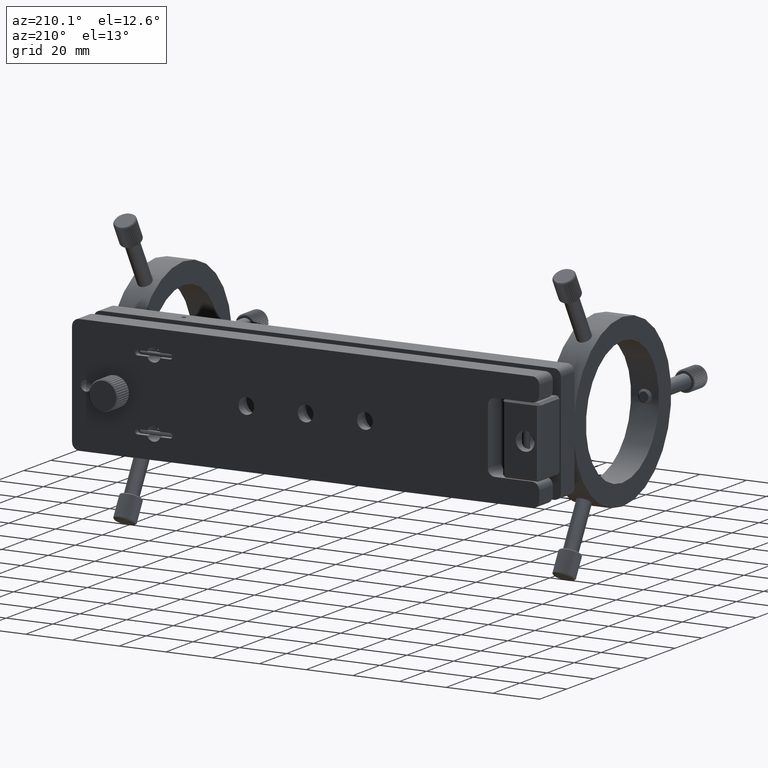
[diagram: clean part render]
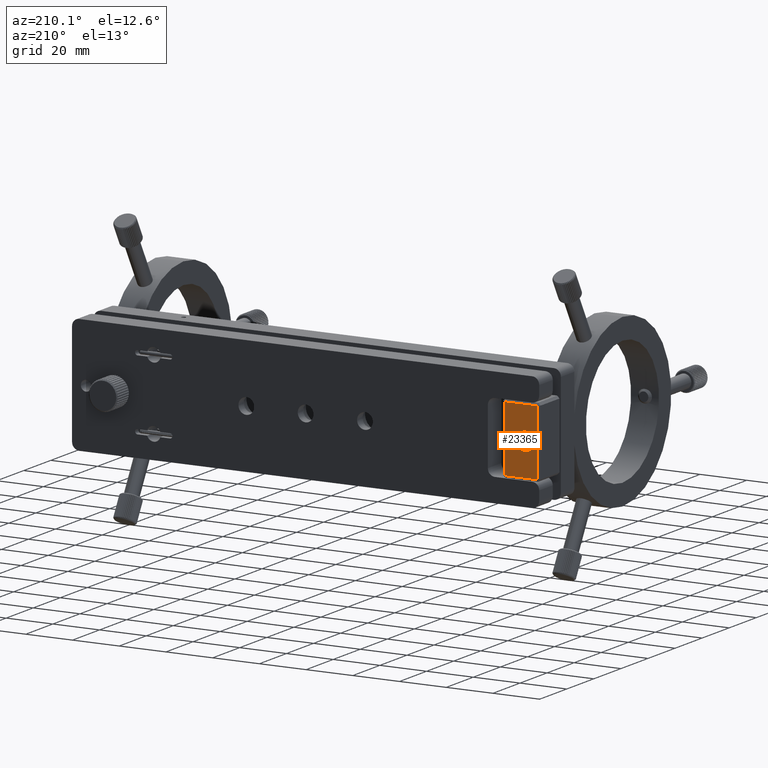
[diagram: same view with one face highlighted and labeled with its STEP entity id]
A machine part, auxiliary view. The second image highlights one B-rep face of the part: STEP entity #23365.
In plain terms, the highlighted planar face has unit normal (0, -1, -0).
Its self-contained STEP definition (entity closure, byte-faithful):
#2011 = FACE_BOUND ( 'NONE', #14839, .T. ) ;
#2026 = VERTEX_POINT ( 'NONE', #28464 ) ;
#4518 = VECTOR ( 'NONE', #39613, 1000.000000000000000 ) ;
#4540 = DIRECTION ( 'NONE',  ( -8.326672684688666700E-017, 1.000000000000000000, -4.000217369937649100E-017 ) ) ;
#8048 = ORIENTED_EDGE ( 'NONE', *, *, #38183, .T. ) ;
#8070 = ORIENTED_EDGE ( 'NONE', *, *, #11624, .F. ) ;
#8191 = CARTESIAN_POINT ( 'NONE',  ( -103.6330608537693100, 8.587042082954921400, -13.99999999999995600 ) ) ;
#9125 = DIRECTION ( 'NONE',  ( 0.0000000000000000000, 0.0000000000000000000, -1.000000000000000000 ) ) ;
#9877 = PLANE ( 'NONE',  #29765 ) ;
#11624 = EDGE_CURVE ( 'NONE', #23239, #17456, #20961, .T. ) ;
#12863 = ORIENTED_EDGE ( 'NONE', *, *, #26146, .T. ) ;
#14839 = EDGE_LOOP ( 'NONE', ( #8070, #29515 ) ) ;
#16044 = DIRECTION ( 'NONE',  ( -3.542776482757819800E-016, 2.030699409015558700E-016, -1.000000000000000000 ) ) ;
#16115 = VERTEX_POINT ( 'NONE', #22328 ) ;
#16118 = ORIENTED_EDGE ( 'NONE', *, *, #21786, .T. ) ;
#17456 = VERTEX_POINT ( 'NONE', #28603 ) ;
#18980 = VECTOR ( 'NONE', #16044, 1000.000000000000000 ) ;
#20787 = LINE ( 'NONE', #45736, #18980 ) ;
#20961 = CIRCLE ( 'NONE', #33718, 3.999999999999999100 ) ;
#21786 = EDGE_CURVE ( 'NONE', #32491, #42781, #33884, .T. ) ;
#22328 = CARTESIAN_POINT ( 'NONE',  ( -88.63306085376930800, 8.587042082954909000, -13.99999999999994100 ) ) ;
#23239 = VERTEX_POINT ( 'NONE', #31575 ) ;
#23326 = DIRECTION ( 'NONE',  ( 0.0000000000000000000, 0.0000000000000000000, -1.000000000000000000 ) ) ;
#23365 = ADVANCED_FACE ( 'NONE', ( #2011, #43244 ), #9877, .F. ) ;
#23656 = DIRECTION ( 'NONE',  ( -8.326672684688666700E-017, 1.000000000000000000, -4.000217369937649100E-017 ) ) ;
#25058 = EDGE_CURVE ( 'NONE', #42781, #16115, #20787, .T. ) ;
#25181 = CARTESIAN_POINT ( 'NONE',  ( -102.6330608537692500, 8.587042082954910800, 14.00000000000003600 ) ) ;
#26146 = EDGE_CURVE ( 'NONE', #16115, #2026, #46641, .T. ) ;
#28464 = CARTESIAN_POINT ( 'NONE',  ( -102.6330608537693100, 8.587042082954921400, -13.99999999999995600 ) ) ;
#28603 = CARTESIAN_POINT ( 'NONE',  ( -97.63306085376928000, 8.587042082954909000, 4.000000000000044400 ) ) ;
#29515 = ORIENTED_EDGE ( 'NONE', *, *, #40785, .F. ) ;
#29765 = AXIS2_PLACEMENT_3D ( 'NONE', #29801, #32658, #44886 ) ;
#29801 = CARTESIAN_POINT ( 'NONE',  ( -87.63306085376930800, 8.587042082954909000, -14.99999999999994000 ) ) ;
#30197 = AXIS2_PLACEMENT_3D ( 'NONE', #46054, #23656, #9125 ) ;
#30577 = CARTESIAN_POINT ( 'NONE',  ( -88.63306085376926500, 8.587042082954898300, 14.00000000000005000 ) ) ;
#31575 = CARTESIAN_POINT ( 'NONE',  ( -97.63306085376928000, 8.587042082954909000, -3.999999999999954300 ) ) ;
#32072 = CIRCLE ( 'NONE', #30197, 3.999999999999999100 ) ;
#32491 = VERTEX_POINT ( 'NONE', #25181 ) ;
#32658 = DIRECTION ( 'NONE',  ( 8.326672684688658000E-017, -1.000000000000000000, -2.030699409015559000E-016 ) ) ;
#33718 = AXIS2_PLACEMENT_3D ( 'NONE', #38804, #4540, #23326 ) ;
#33884 = LINE ( 'NONE', #36512, #41437 ) ;
#34057 = LINE ( 'NONE', #42748, #4518 ) ;
#36023 = VECTOR ( 'NONE', #41796, 1000.000000000000000 ) ;
#36512 = CARTESIAN_POINT ( 'NONE',  ( -87.63306085376926500, 8.587042082954898300, 14.00000000000005300 ) ) ;
#37163 = EDGE_LOOP ( 'NONE', ( #12863, #8048, #16118, #40934 ) ) ;
#38183 = EDGE_CURVE ( 'NONE', #2026, #32491, #34057, .T. ) ;
#38804 = CARTESIAN_POINT ( 'NONE',  ( -97.63306085376928000, 8.587042082954909000, 4.549362112155884800E-014 ) ) ;
#39613 = DIRECTION ( 'NONE',  ( 3.542776482757819800E-016, -2.030699409015558700E-016, 1.000000000000000000 ) ) ;
#40275 = DIRECTION ( 'NONE',  ( 1.000000000000000000, -7.494005416219807600E-016, 1.068427361103950100E-015 ) ) ;
#40785 = EDGE_CURVE ( 'NONE', #17456, #23239, #32072, .T. ) ;
#40934 = ORIENTED_EDGE ( 'NONE', *, *, #25058, .T. ) ;
#41437 = VECTOR ( 'NONE', #40275, 1000.000000000000000 ) ;
#41796 = DIRECTION ( 'NONE',  ( -1.000000000000000000, 7.494005416219807600E-016, -1.068427361103950100E-015 ) ) ;
#42748 = CARTESIAN_POINT ( 'NONE',  ( -102.6330608537693100, 8.587042082954921400, -14.99999999999995900 ) ) ;
#42781 = VERTEX_POINT ( 'NONE', #30577 ) ;
#43244 = FACE_OUTER_BOUND ( 'NONE', #37163, .T. ) ;
#44886 = DIRECTION ( 'NONE',  ( 3.542776482757819800E-016, -2.030699409015558700E-016, 1.000000000000000000 ) ) ;
#45736 = CARTESIAN_POINT ( 'NONE',  ( -88.63306085376930800, 8.587042082954909000, -14.99999999999994500 ) ) ;
#46054 = CARTESIAN_POINT ( 'NONE',  ( -97.63306085376928000, 8.587042082954909000, 4.549362112155884800E-014 ) ) ;
#46641 = LINE ( 'NONE', #8191, #36023 ) ;